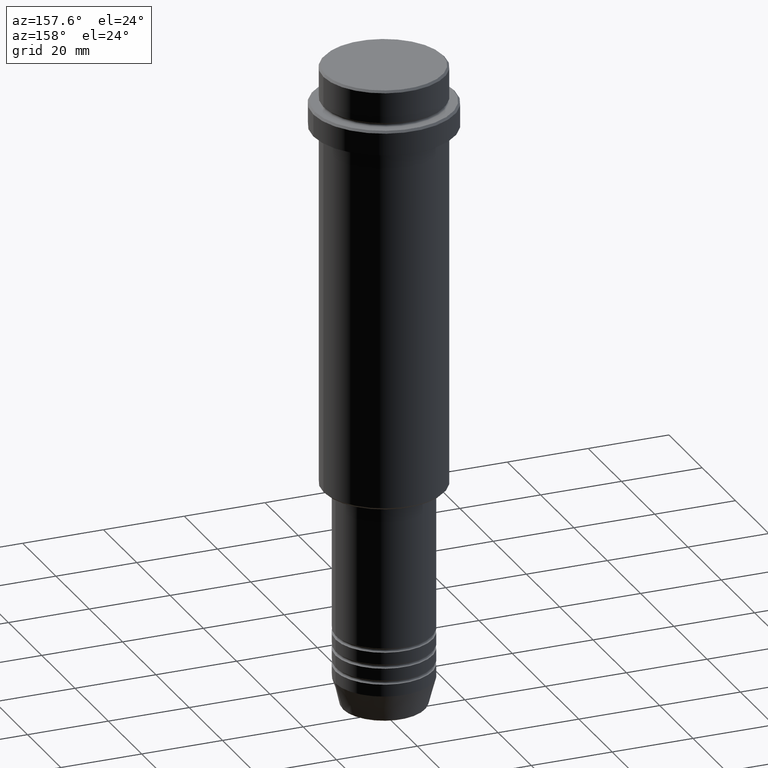
[diagram: clean part render]
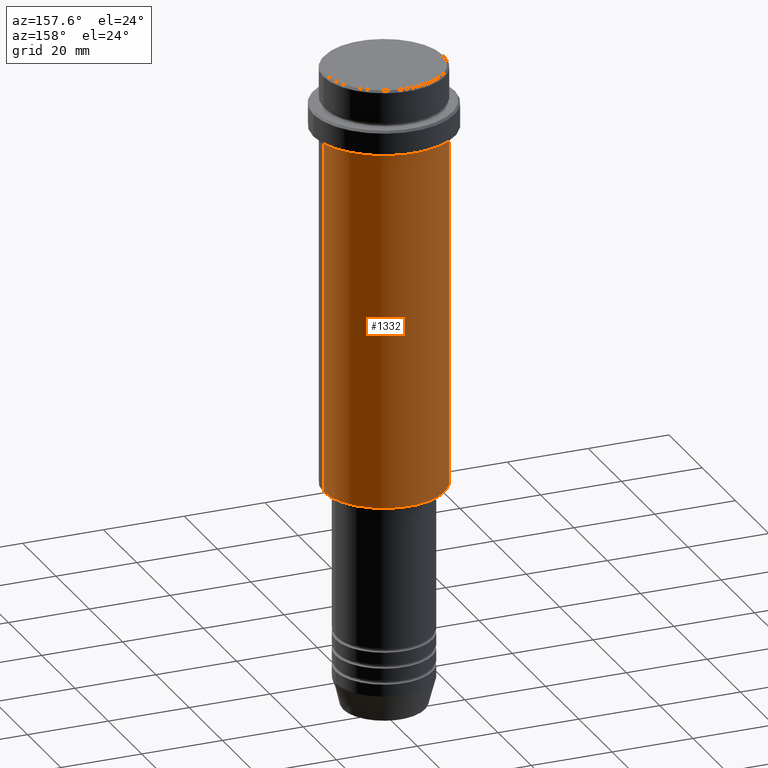
[diagram: same view with one face highlighted and labeled with its STEP entity id]
A machine part, auxiliary view. The second image highlights one B-rep face of the part: STEP entity #1332.
In plain terms, the highlighted cylindrical surface (partial cylindrical patch) has radius 15 mm, axis along (-0, -0, 1).
Its self-contained STEP definition (entity closure, byte-faithful):
#64 = EDGE_CURVE ( 'NONE', #1392, #207, #378, .T. ) ;
#75 = ORIENTED_EDGE ( 'NONE', *, *, #64, .F. ) ;
#91 = DIRECTION ( 'NONE',  ( -0.000000000000000000, -0.000000000000000000, 1.000000000000000000 ) ) ;
#100 = LINE ( 'NONE', #1389, #263 ) ;
#105 = VERTEX_POINT ( 'NONE', #821 ) ;
#106 = CIRCLE ( 'NONE', #907, 15.00000000000000000 ) ;
#204 = AXIS2_PLACEMENT_3D ( 'NONE', #1070, #91, #541 ) ;
#207 = VERTEX_POINT ( 'NONE', #425 ) ;
#235 = CARTESIAN_POINT ( 'NONE',  ( 15.00000000000000000, 0.000000000000000000, -104.5000000000000000 ) ) ;
#263 = VECTOR ( 'NONE', #1175, 1000.000000000000000 ) ;
#269 = EDGE_CURVE ( 'NONE', #1034, #105, #100, .T. ) ;
#354 = ORIENTED_EDGE ( 'NONE', *, *, #1194, .F. ) ;
#370 = CARTESIAN_POINT ( 'NONE',  ( 0.000000000000000000, 0.000000000000000000, -104.5000000000000000 ) ) ;
#378 = LINE ( 'NONE', #1348, #1201 ) ;
#397 = DIRECTION ( 'NONE',  ( 1.000000000000000000, 0.000000000000000000, 0.000000000000000000 ) ) ;
#400 = DIRECTION ( 'NONE',  ( -1.000000000000000000, 0.000000000000000000, 0.000000000000000000 ) ) ;
#425 = CARTESIAN_POINT ( 'NONE',  ( 15.00000000000000178, 0.000000000000000000, -16.00000000000000000 ) ) ;
#435 = CYLINDRICAL_SURFACE ( 'NONE', #204, 15.00000000000000000 ) ;
#526 = ORIENTED_EDGE ( 'NONE', *, *, #555, .T. ) ;
#541 = DIRECTION ( 'NONE',  ( 1.000000000000000000, 0.000000000000000000, 0.000000000000000000 ) ) ;
#555 = EDGE_CURVE ( 'NONE', #1392, #1034, #106, .T. ) ;
#821 = CARTESIAN_POINT ( 'NONE',  ( -15.00000000000000355, 1.836970198721029983E-15, -16.00000000000000000 ) ) ;
#875 = FACE_OUTER_BOUND ( 'NONE', #1278, .T. ) ;
#907 = AXIS2_PLACEMENT_3D ( 'NONE', #370, #1137, #400 ) ;
#913 = DIRECTION ( 'NONE',  ( -0.000000000000000000, -0.000000000000000000, 1.000000000000000000 ) ) ;
#1034 = VERTEX_POINT ( 'NONE', #1248 ) ;
#1070 = CARTESIAN_POINT ( 'NONE',  ( 0.000000000000000000, 0.000000000000000000, 0.000000000000000000 ) ) ;
#1095 = ORIENTED_EDGE ( 'NONE', *, *, #269, .T. ) ;
#1137 = DIRECTION ( 'NONE',  ( -0.000000000000000000, -0.000000000000000000, 1.000000000000000000 ) ) ;
#1175 = DIRECTION ( 'NONE',  ( -0.000000000000000000, -0.000000000000000000, 1.000000000000000000 ) ) ;
#1194 = EDGE_CURVE ( 'NONE', #207, #105, #1275, .T. ) ;
#1201 = VECTOR ( 'NONE', #1267, 1000.000000000000000 ) ;
#1226 = AXIS2_PLACEMENT_3D ( 'NONE', #1377, #913, #397 ) ;
#1248 = CARTESIAN_POINT ( 'NONE',  ( -15.00000000000000000, 1.836970198721029589E-15, -104.5000000000000000 ) ) ;
#1267 = DIRECTION ( 'NONE',  ( -0.000000000000000000, -0.000000000000000000, 1.000000000000000000 ) ) ;
#1275 = CIRCLE ( 'NONE', #1226, 15.00000000000000178 ) ;
#1278 = EDGE_LOOP ( 'NONE', ( #526, #1095, #354, #75 ) ) ;
#1332 = ADVANCED_FACE ( 'NONE', ( #875 ), #435, .T. ) ;
#1348 = CARTESIAN_POINT ( 'NONE',  ( 15.00000000000000000, 0.000000000000000000, 0.000000000000000000 ) ) ;
#1377 = CARTESIAN_POINT ( 'NONE',  ( 0.000000000000000000, 0.000000000000000000, -16.00000000000000000 ) ) ;
#1389 = CARTESIAN_POINT ( 'NONE',  ( -15.00000000000000000, 1.836970198721029589E-15, 0.000000000000000000 ) ) ;
#1392 = VERTEX_POINT ( 'NONE', #235 ) ;